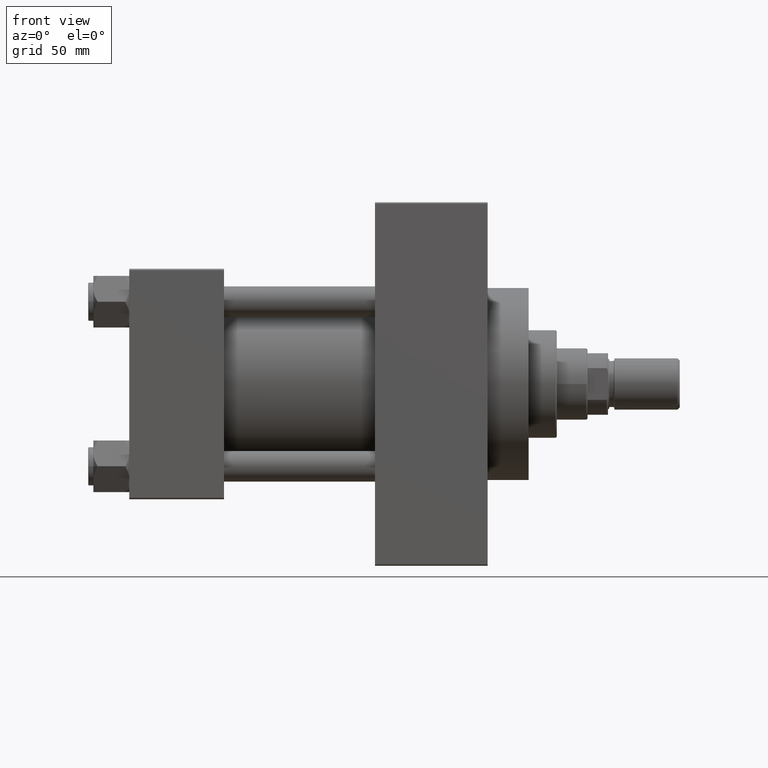
[diagram: clean part render]
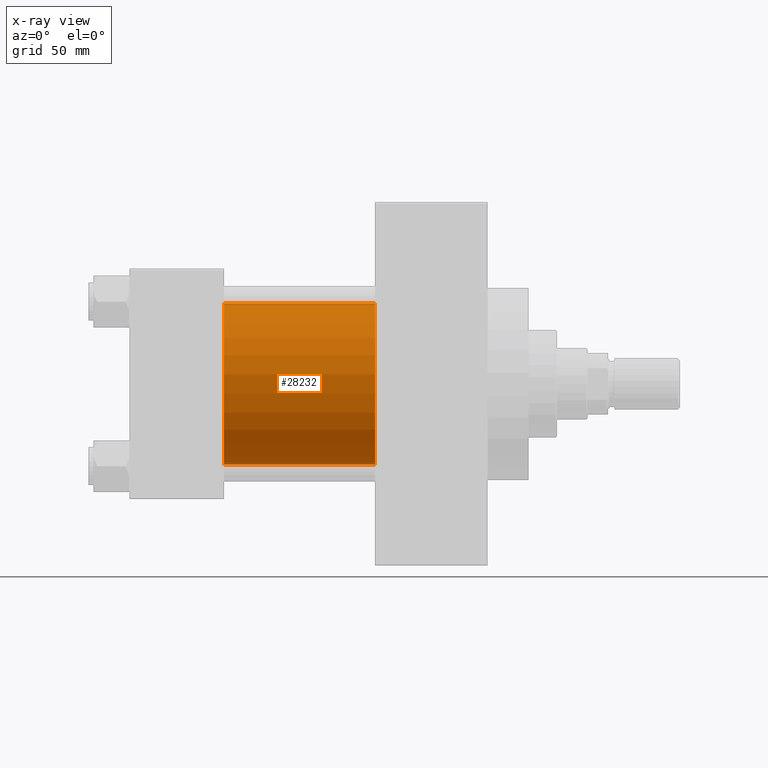
[diagram: x-ray — body ghosted, one internal face saturated and labeled with its STEP entity id]
A machine part, front view, then the same camera in x-ray: the body is ghosted and one INTERNAL B-rep face — a face not visible from any outside direction — is saturated and labeled: STEP entity #28232.
In plain terms, the highlighted cylindrical surface (partial cylindrical patch) has radius 31.5 mm, axis along (-1, -0, -0).
Its self-contained STEP definition (entity closure, byte-faithful):
#2390 = AXIS2_PLACEMENT_3D ( 'NONE', #25112, #39844, #10688 ) ;
#2433 = DIRECTION ( 'NONE',  ( -1.000000000000000000, -0.000000000000000000, -0.000000000000000000 ) ) ;
#3544 = EDGE_LOOP ( 'NONE', ( #24897, #29293, #23552, #8855 ) ) ;
#4175 = VECTOR ( 'NONE', #8809, 1000.000000000000000 ) ;
#4703 = DIRECTION ( 'NONE',  ( 0.000000000000000000, 0.000000000000000000, -1.000000000000000000 ) ) ;
#7139 = AXIS2_PLACEMENT_3D ( 'NONE', #33624, #34104, #4703 ) ;
#7248 = VERTEX_POINT ( 'NONE', #33264 ) ;
#8809 = DIRECTION ( 'NONE',  ( -1.000000000000000000, -0.000000000000000000, -0.000000000000000000 ) ) ;
#8855 = ORIENTED_EDGE ( 'NONE', *, *, #12774, .F. ) ;
#9550 = CYLINDRICAL_SURFACE ( 'NONE', #31728, 31.50000000000000000 ) ;
#10688 = DIRECTION ( 'NONE',  ( 0.000000000000000000, 0.000000000000000000, -1.000000000000000000 ) ) ;
#12774 = EDGE_CURVE ( 'NONE', #7248, #12930, #46067, .T. ) ;
#12930 = VERTEX_POINT ( 'NONE', #37930 ) ;
#13937 = CIRCLE ( 'NONE', #2390, 31.50000000000000000 ) ;
#19407 = CARTESIAN_POINT ( 'NONE',  ( 96.00000000000000000, 1.255552203348951850E-15, -31.50000000000000000 ) ) ;
#21724 = VERTEX_POINT ( 'NONE', #28926 ) ;
#23250 = CIRCLE ( 'NONE', #7139, 31.50000000000000000 ) ;
#23552 = ORIENTED_EDGE ( 'NONE', *, *, #28447, .F. ) ;
#24897 = ORIENTED_EDGE ( 'NONE', *, *, #25562, .T. ) ;
#25112 = CARTESIAN_POINT ( 'NONE',  ( 96.00000000000000000, -2.602085213965210642E-15, 0.000000000000000000 ) ) ;
#25562 = EDGE_CURVE ( 'NONE', #7248, #38583, #13937, .T. ) ;
#27477 = VECTOR ( 'NONE', #2433, 1000.000000000000000 ) ;
#28232 = ADVANCED_FACE ( 'NONE', ( #42086 ), #9550, .F. ) ;
#28447 = EDGE_CURVE ( 'NONE', #12930, #21724, #23250, .T. ) ;
#28926 = CARTESIAN_POINT ( 'NONE',  ( 37.00000000000000000, 1.255552203348951850E-15, -31.50000000000000000 ) ) ;
#29293 = ORIENTED_EDGE ( 'NONE', *, *, #32346, .T. ) ;
#30253 = LINE ( 'NONE', #19407, #4175 ) ;
#31714 = DIRECTION ( 'NONE',  ( 0.000000000000000000, 0.000000000000000000, 1.000000000000000000 ) ) ;
#31728 = AXIS2_PLACEMENT_3D ( 'NONE', #35111, #43035, #31714 ) ;
#32058 = CARTESIAN_POINT ( 'NONE',  ( 96.00000000000000000, -2.602085213965210642E-15, 31.50000000000000000 ) ) ;
#32346 = EDGE_CURVE ( 'NONE', #38583, #21724, #30253, .T. ) ;
#33264 = CARTESIAN_POINT ( 'NONE',  ( 96.00000000000000000, -2.602085213965210642E-15, 31.50000000000000000 ) ) ;
#33624 = CARTESIAN_POINT ( 'NONE',  ( 37.00000000000000000, -2.602085213965210642E-15, 0.000000000000000000 ) ) ;
#34104 = DIRECTION ( 'NONE',  ( 1.000000000000000000, 0.000000000000000000, 0.000000000000000000 ) ) ;
#35111 = CARTESIAN_POINT ( 'NONE',  ( 96.00000000000000000, -2.602085213965210642E-15, 0.000000000000000000 ) ) ;
#37930 = CARTESIAN_POINT ( 'NONE',  ( 37.00000000000000000, -2.602085213965210642E-15, 31.50000000000000000 ) ) ;
#38583 = VERTEX_POINT ( 'NONE', #40696 ) ;
#39844 = DIRECTION ( 'NONE',  ( 1.000000000000000000, 0.000000000000000000, 0.000000000000000000 ) ) ;
#40696 = CARTESIAN_POINT ( 'NONE',  ( 96.00000000000000000, 1.255552203348951850E-15, -31.50000000000000000 ) ) ;
#42086 = FACE_OUTER_BOUND ( 'NONE', #3544, .T. ) ;
#43035 = DIRECTION ( 'NONE',  ( -1.000000000000000000, -0.000000000000000000, -0.000000000000000000 ) ) ;
#46067 = LINE ( 'NONE', #32058, #27477 ) ;